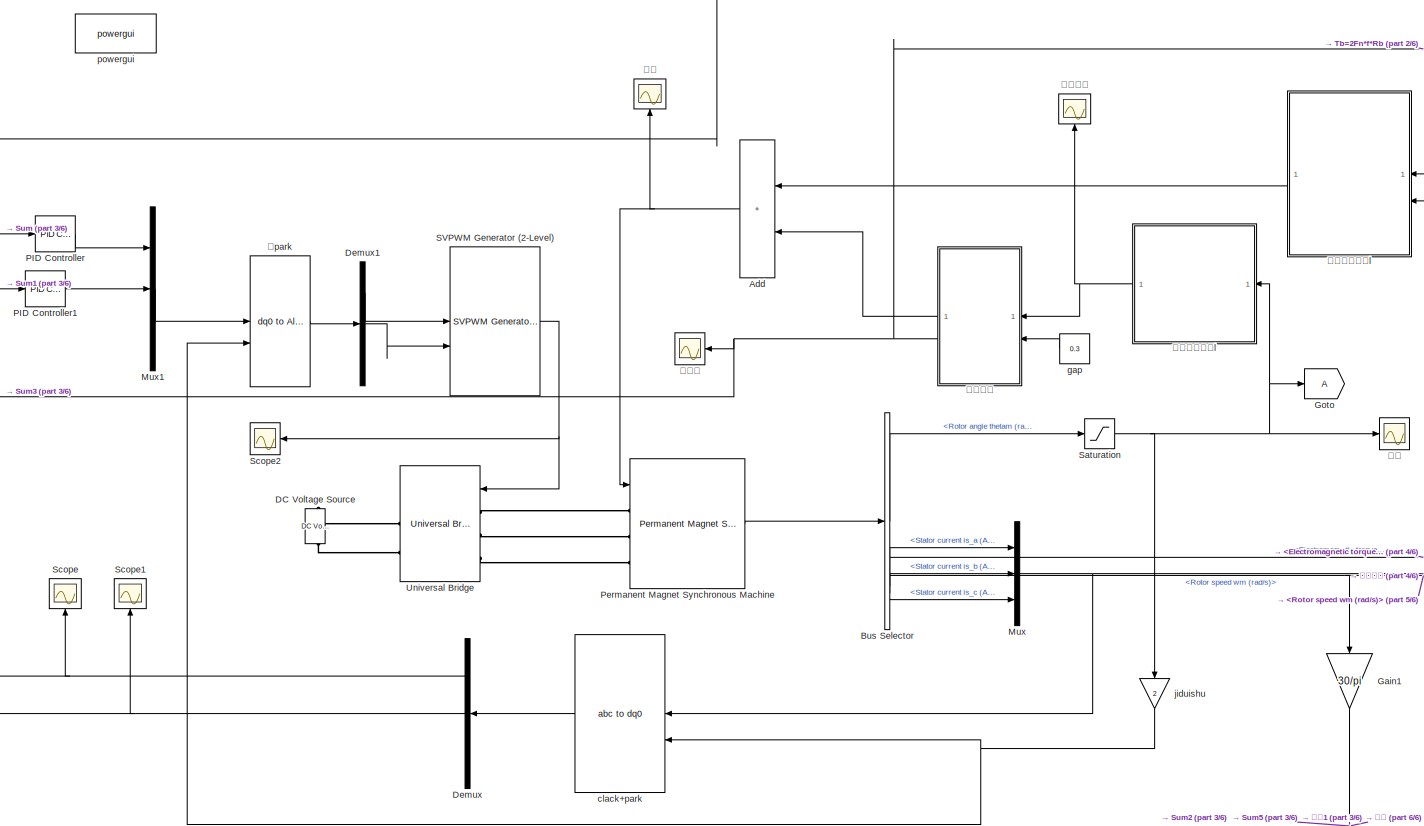
[diagram: root canvas - part 1/6, center side, full height]
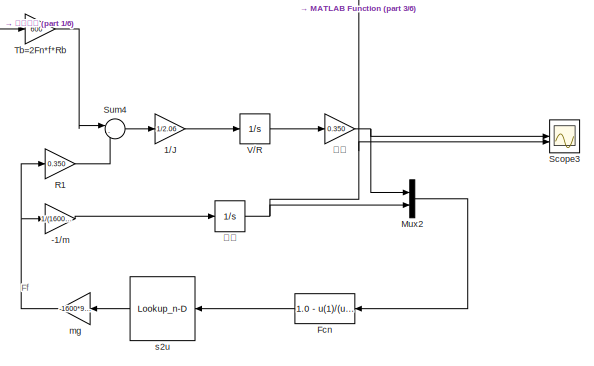
[diagram: root canvas - part 2/6, top right region]
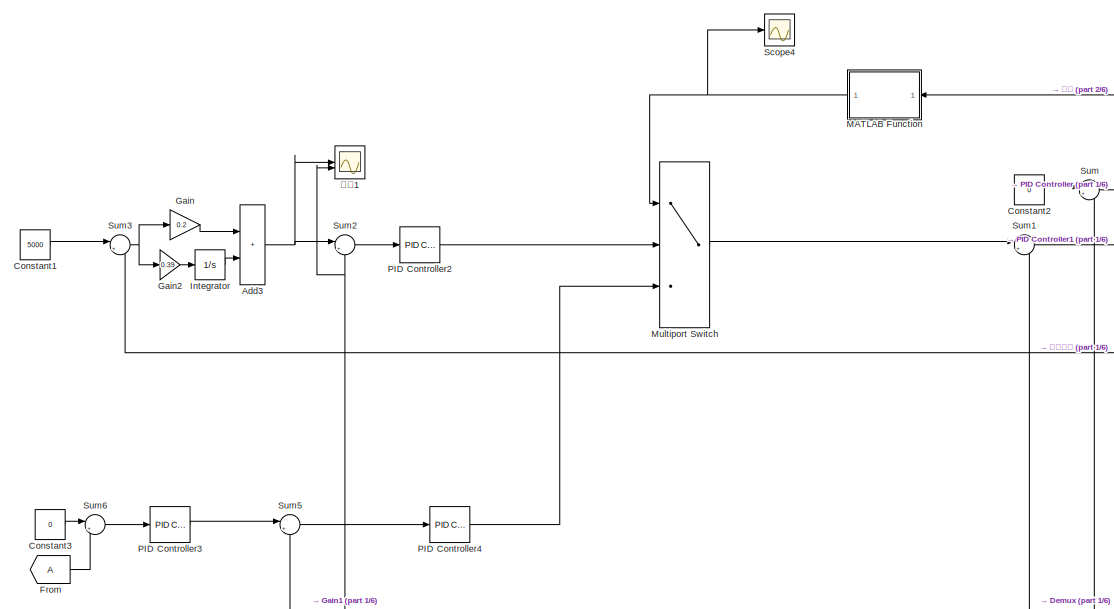
[diagram: root canvas - part 3/6, middle left region]
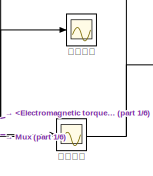
[diagram: root canvas - part 4/6, middle right region]
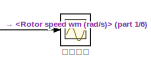
[diagram: root canvas - part 5/6, middle right region]
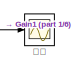
[diagram: root canvas - part 6/6, bottom right region]
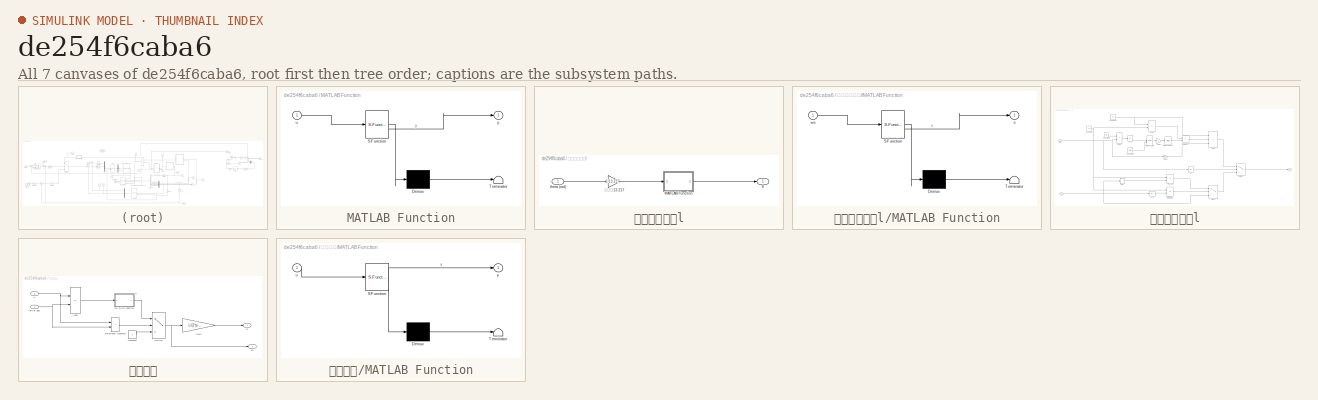
[diagram: thumbnail index - all 7 canvases of the model, root first then tree order]
MODEL slx_de254f6caba6
KIND model
CONFIG AbsTol = auto
CONFIG EnableMultiTasking = off
CONFIG FixedStep = 5e-5
CONFIG MaxStep = auto
CONFIG MinStep = auto
CONFIG RelTol = 1e-3
CONFIG SampleTimeConstraint = Unconstrained
CONFIG SolverName = FixedStepAuto
CONFIG StartTime = 0.0
CONFIG StopTime = 8
WORKSPACE source: mxarray member
WORKSPACE Bv = 0.001086
WORKSPACE L = 0.005
WORKSPACE Tc = 0.0192
WORKSPACE Ts = 0.0387
WORKSPACE Ws = 1
WORKSPACE deta = 1
WORKSPACE ng = 0.9
WORKSPACE ns = 0.9
BLOCK [Gain] -1//m
  Gain = 1/(1600*0.25)
BLOCK [Gain] 1//J
  Gain = 1/2.06
BLOCK [Sum] Add
  IconShape = rectangular
BLOCK [Sum] Add3
  IconShape = rectangular
BLOCK [BusSelector] Bus Selector
  OutputSignals = Rotor angle thetam (rad),Electromagnetic torque Te (N*m),Rotor speed wm (rad/s),Stator current is_a (A),Stator current is_b (A),Stator current is_c (A)
BLOCK [Constant] Constant1
  Value = 5000
BLOCK [Constant] Constant2
  Value = 0
BLOCK [Constant] Constant3
  Value = 0
  VectorParams1D = off
BLOCK [Reference] DC Voltage Source  REF=spsDCVoltageSourceLib/DC Voltage Source
  LibrarySourceBlock = sps_lib/Sources/DC Voltage Source
  NameLocation = right
  SourceBlock = spsDCVoltageSourceLib/DC Voltage Source
  SourceType = DC Voltage Source
BLOCK [Demux] Demux
  Outputs = 3
BLOCK [Demux] Demux1
  Outputs = 3
BLOCK [Fcn] Fcn
  Expr = 1.0 - u(1)/(u(2) + (u(2)==0)*eps)
  NameLocation = top
BLOCK [From] From
BLOCK [Gain] Gain
  Gain = 0.2
BLOCK [Gain] Gain1
  Gain = 30/pi
  NameLocation = left
BLOCK [Gain] Gain2
  Gain = 0.39
BLOCK [Goto] Goto
BLOCK [Integrator] Integrator
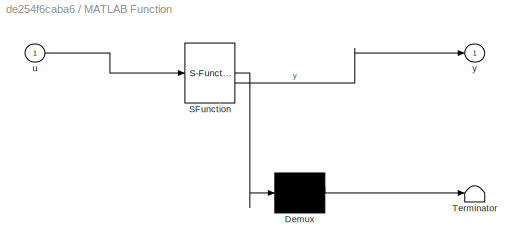
BLOCK [SubSystem] MATLAB Function
  ErrorFcn = Stateflow.Translate.translate
  LibrarySourceBlock = simulink/User-Defined\nFunctions/MATLAB Function
  NameLocation = top
  PermitHierarchicalResolution = ExplicitOnly
  SFBlockType = MATLAB Function
  TreatAsAtomicUnit = on
BLOCK [Demux] MATLAB Function/ Demux 
  Outputs = 1
BLOCK [S-Function] MATLAB Function/ SFunction 
  EnableBusSupport = on
  FunctionName = sf_sfun
  PortCounts = [1 2]
  SFcnIsStateOwnerBlock = off
  SFunctionDeploymentMode = off
  Tag = Stateflow S-Function 3
BLOCK [Terminator] MATLAB Function/ Terminator 
BLOCK [Inport] MATLAB Function/u
BLOCK [Outport] MATLAB Function/y
BLOCK [MultiPortSwitch] Multiport Switch
  DiagnosticForDefault = None
  InputSameDT = off
  Inputs = 2
  SaturateOnIntegerOverflow = off
BLOCK [Mux] Mux
  DisplayOption = bar
  Inputs = 3
BLOCK [Mux] Mux1
  DisplayOption = bar
  Inputs = 3
BLOCK [Mux] Mux2
  DisplayOption = bar
  Inputs = 2
BLOCK [Reference] PID Controller  REF=slpidlib/PID Controller
  SourceBlock = slpidlib/PID Controller
  SourceType = PID 1dof
BLOCK [Reference] PID Controller1  REF=slpidlib/PID Controller
  SourceBlock = slpidlib/PID Controller
  SourceType = PID 1dof
BLOCK [Reference] PID Controller2  REF=slpidlib/PID Controller
  SourceBlock = slpidlib/PID Controller
  SourceType = PID 1dof
BLOCK [Reference] PID Controller3  REF=slpidlib/PID Controller
  SourceBlock = slpidlib/PID Controller
  SourceType = PID 1dof
BLOCK [Reference] PID Controller4  REF=slpidlib/PID Controller
  SourceBlock = slpidlib/PID Controller
  SourceType = PID 1dof
BLOCK [Reference] Permanent Magnet Synchronous Machine  REF=spsPermanentMagnetSynchronousMachineLib/Permanent Magnet
Synchronous Machine
  LibrarySourceBlock = sps_lib/Electrical Machines/Permanent Magnet\nSynchronous Machine
  SourceBlock = spsPermanentMagnetSynchronousMachineLib/Permanent Magnet\nSynchronous Machine
  SourceType = Permanent Magnet Synchronous Machine
BLOCK [Gain] R1
  Gain = 0.350
BLOCK [Reference] SVPWM Generator (2-Level)  REF=spsSVPWMGenerator2LevelLib/SVPWM Generator
(2-Level)
  LibrarySourceBlock = sps_lib/Power Electronics/Power Electronics Control/SVPWM Generator\n(2-Level)
  SourceBlock = spsSVPWMGenerator2LevelLib/SVPWM Generator\n(2-Level)
  SourceType = SVPWM Generator (2-Level)
BLOCK [Saturate] Saturation
  LowerLimit = 0
  UpperLimit = 1000000
BLOCK [Scope] Scope
  Floating = off
  NameLocation = right
  NumInputPorts = 1
  ScopeSpecificationString = Simulink.scopes.TimeScopeBlockCfg('CurrentConfiguration', extmgr.ConfigurationSet(extmgr.Configuration('Core','General UI',true),extmgr.Configuration('Core','Source UI',true),extmgr.Configuration('Sources','WiredSimulink',true,'DataLoggingVariableName','ScopeData5'),extmgr.Configuration('Visuals','Time Domain',true,'SerializedDisplays',{struct('MinYLimReal','-19.37793','MaxYLimReal','29.91479','YL...<+1472ch>
BLOCK [Scope] Scope1
  Floating = off
  NameLocation = right
  NumInputPorts = 1
  ScopeSpecificationString = Simulink.scopes.TimeScopeBlockCfg('CurrentConfiguration', extmgr.ConfigurationSet(extmgr.Configuration('Core','General UI',true),extmgr.Configuration('Core','Source UI',true),extmgr.Configuration('Sources','WiredSimulink',true,'DataLoggingVariableName','ScopeData2'),extmgr.Configuration('Visuals','Time Domain',true,'SerializedDisplays',{struct('MinYLimReal','-15.96589','MaxYLimReal','13.93676','YL...<+1426ch>
BLOCK [Scope] Scope2
  Floating = off
  NameLocation = top
  NumInputPorts = 1
  ScopeSpecificationString = Simulink.scopes.TimeScopeBlockCfg('CurrentConfiguration', extmgr.ConfigurationSet(extmgr.Configuration('Core','General UI',true),extmgr.Configuration('Core','Source UI',true),extmgr.Configuration('Sources','WiredSimulink',true,'DataLoggingVariableName','ScopeData3'),extmgr.Configuration('Visuals','Time Domain',true,'SerializedDisplays',{struct('MinYLimReal','-0.125','MaxYLimReal','1.125','YLabelRe...<+1624ch>
BLOCK [Scope] Scope3
  Floating = off
  NumInputPorts = 2
  ScopeSpecificationString = Simulink.scopes.TimeScopeBlockCfg('CurrentConfiguration', extmgr.ConfigurationSet(extmgr.Configuration('Core','General UI',true),extmgr.Configuration('Core','Source UI',true),extmgr.Configuration('Sources','WiredSimulink',true,'DataLoggingVariableName','ScopeData1'),extmgr.Configuration('Visuals','Time Domain',true,'SerializedDisplays',{struct('MinYLimReal','-5.00000','MaxYLimReal','45.00000','YLa...<+1399ch>
BLOCK [Scope] Scope4
  Floating = off
  NumInputPorts = 1
  ScopeSpecificationString = Simulink.scopes.TimeScopeBlockCfg('CurrentConfiguration', extmgr.ConfigurationSet(extmgr.Configuration('Core','General UI',true),extmgr.Configuration('Core','Source UI',true),extmgr.Configuration('Sources','WiredSimulink',true,'DataLoggingVariableName','ScopeData1'),extmgr.Configuration('Visuals','Time Domain',true,'SerializedDisplays',{struct('MinYLimReal','0.875','MaxYLimReal','2.125','YLabelRea...<+1385ch>
BLOCK [Sum] Sum
  Inputs = |+-
BLOCK [Sum] Sum1
  Inputs = |+-
BLOCK [Sum] Sum2
  Inputs = |+-
BLOCK [Sum] Sum3
  Inputs = |+-
BLOCK [Sum] Sum4
  Inputs = |-+
BLOCK [Sum] Sum5
  Inputs = |+-
BLOCK [Sum] Sum6
  Inputs = |+-
BLOCK [Gain] Tb=2Fn*f*Rb
  Gain = 600
BLOCK [Reference] Universal Bridge  REF=spsUniversalBridgeLib/Universal Bridge
  LibrarySourceBlock = sps_lib/Power Electronics/Universal Bridge
  SourceBlock = spsUniversalBridgeLib/Universal Bridge
  SourceType = Universal Bridge
BLOCK [Integrator] V//R
  InitialCondition = 40/0.350
  LimitOutput = on
  LowerSaturationLimit = 0
  UpperSaturationLimit = 1000
BLOCK [Reference] clack+park  REF=spsabctodq0Lib/abc to dq0
  LibrarySourceBlock = sps_lib/Control/abc to dq0
  SourceBlock = spsabctodq0Lib/abc to dq0
  SourceType = abc to dq0 Transformation
BLOCK [Constant] gap
  Value = 0.3
BLOCK [Gain] jiduishu
  Gain = 2
  NameLocation = left
BLOCK [Gain] mg
  Gain = -1600*9.8/4
BLOCK [Reference] powergui  REF=sps_lib/powergui
  Priority = 1
  SourceBlock = sps_lib/powergui
  SourceType = PSB option menu block
BLOCK [Lookup_n-D] s2u
  BreakpointsForDimension1 = [0;0.05;0.1;0.15;0.2;0.25;0.3;0.35;0.4;0.45;0.5;0.55;0.6;0.65;0.7;0.75;0.8;0.85;0.9;0.95;1]
  InputPortMap = u0
  InternalRulePriority = Speed
  NumberOfTableDimensions = 1
  RndMeth = Simplest
  Table = [0;0.4;0.8;0.97;1;0.98;0.96;0.94;0.92;0.9;0.88;0.855;0.83;0.81;0.79;0.77;0.75;0.73;0.72;0.71;0.7]
BLOCK [SubSystem] 传动机构模型l
BLOCK [Inport] 传动机构模型l/ theta (rad)
BLOCK [SubSystem] 传动机构模型l/MATLAB Function
  ErrorFcn = Stateflow.Translate.translate
  LibrarySourceBlock = simulink/User-Defined\nFunctions/MATLAB Function
  PermitHierarchicalResolution = ExplicitOnly
  SFBlockType = MATLAB Function
  TreatAsAtomicUnit = on
BLOCK [Demux] 传动机构模型l/MATLAB Function/ Demux 
  Outputs = 1
BLOCK [S-Function] 传动机构模型l/MATLAB Function/ SFunction 
  EnableBusSupport = on
  FunctionName = sf_sfun
  PortCounts = [1 2]
  SFcnIsStateOwnerBlock = off
  SFunctionDeploymentMode = off
  Tag = Stateflow S-Function 1
BLOCK [Terminator] 传动机构模型l/MATLAB Function/ Terminator 
BLOCK [Outport] 传动机构模型l/MATLAB Function/s
BLOCK [Inport] 传动机构模型l/MATLAB Function/ws
BLOCK [Outport] 传动机构模型l/S
  VectorParamsAs1DForOutWhenUnconnected = off
BLOCK [Gain] 传动机构模型l/传动比13.217
  Gain = 1/13.217
BLOCK [Reference] 反park  REF=spsdq0toAlphaBetaZeroLib/dq0 to
Alpha-Beta-Zero
  LibrarySourceBlock = sps_lib/Control/dq0 to\nAlpha-Beta-Zero
  SourceBlock = spsdq0toAlphaBetaZeroLib/dq0 to\nAlpha-Beta-Zero
  SourceType = dq0 to Alpha-Beta-Zero Transformation
BLOCK [Scope] 夹紧力
  Floating = off
  NumInputPorts = 1
  ScopeSpecificationString = Simulink.scopes.TimeScopeBlockCfg('CurrentConfiguration', extmgr.ConfigurationSet(extmgr.Configuration('Core','General UI',true),extmgr.Configuration('Core','Source UI',true),extmgr.Configuration('Sources','WiredSimulink',true),extmgr.Configuration('Visuals','Time Domain',true,'SerializedDisplays',{struct('MinYLimReal','-890.18744','MaxYLimReal','8011.68692','YLabelReal','','MinYLimMag',' 0.00000'...<+1444ch>
BLOCK [Scope] 定子电流
  Floating = off
  NumInputPorts = 1
  ScopeSpecificationString = Simulink.scopes.TimeScopeBlockCfg('CurrentConfiguration', extmgr.ConfigurationSet(extmgr.Configuration('Core','General UI',true),extmgr.Configuration('Core','Source UI',true),extmgr.Configuration('Sources','WiredSimulink',true,'DataLoggingVariableName','ScopeData1'),extmgr.Configuration('Visuals','Time Domain',true,'SerializedDisplays',{struct('MinYLimReal','-76.07517','MaxYLimReal','76.02422','YL...<+1544ch>
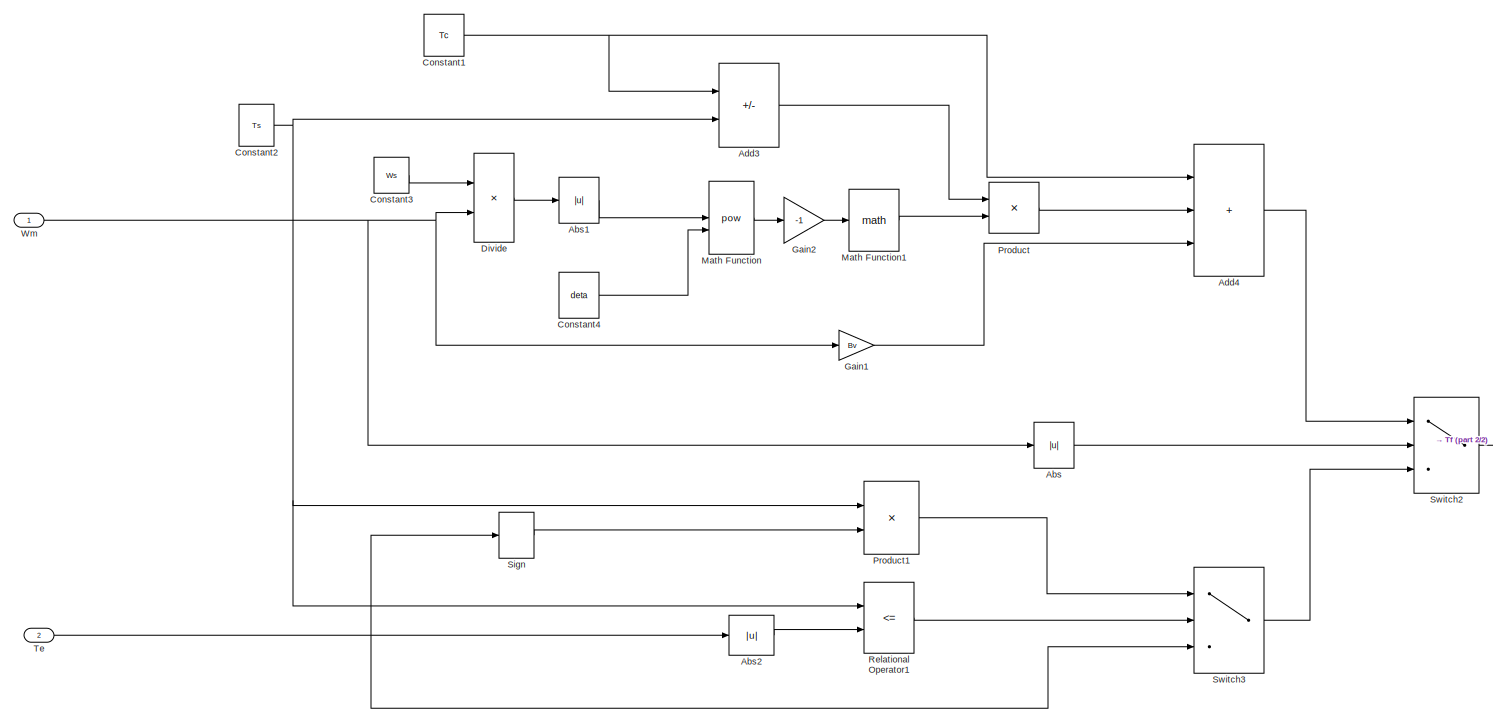
[diagram: 电机摩擦模型l - part 1/2, most of the canvas]
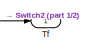
[diagram: 电机摩擦模型l - part 2/2, middle right region]
BLOCK [SubSystem] 电机摩擦模型l
BLOCK [Abs] 电机摩擦模型l/Abs
  SaturateOnIntegerOverflow = off
BLOCK [Abs] 电机摩擦模型l/Abs1
  SaturateOnIntegerOverflow = off
BLOCK [Abs] 电机摩擦模型l/Abs2
  SaturateOnIntegerOverflow = off
BLOCK [Sum] 电机摩擦模型l/Add3
  IconShape = rectangular
  Inputs = -+
BLOCK [Sum] 电机摩擦模型l/Add4
  IconShape = rectangular
  Inputs = +++
BLOCK [Constant] 电机摩擦模型l/Constant1
  Value = Tc
BLOCK [Constant] 电机摩擦模型l/Constant2
  Value = Ts
BLOCK [Constant] 电机摩擦模型l/Constant3
  Value = Ws
BLOCK [Constant] 电机摩擦模型l/Constant4
  Value = deta
BLOCK [Product] 电机摩擦模型l/Divide
  Inputs = /*
BLOCK [Gain] 电机摩擦模型l/Gain1
  Gain = Bv
BLOCK [Gain] 电机摩擦模型l/Gain2
  Gain = -1
BLOCK [Math] 电机摩擦模型l/Math Function
  Operator = pow
  SignedPower = on
BLOCK [Math] 电机摩擦模型l/Math Function1
  SignedPower = on
BLOCK [Product] 电机摩擦模型l/Product
BLOCK [Product] 电机摩擦模型l/Product1
BLOCK [RelationalOperator] 电机摩擦模型l/Relational Operator1
  InputSameDT = off
  Operator = <=
  OutDataTypeStr = boolean
  RndMeth = Simplest
BLOCK [Signum] 电机摩擦模型l/Sign
BLOCK [Switch] 电机摩擦模型l/Switch2
  Criteria = u2 > Threshold
  InputSameDT = off
  SaturateOnIntegerOverflow = off
BLOCK [Switch] 电机摩擦模型l/Switch3
  Criteria = u2 > Threshold
  InputSameDT = off
  SaturateOnIntegerOverflow = off
BLOCK [Inport] 电机摩擦模型l/Te
  Port = 2
BLOCK [Outport] 电机摩擦模型l/Tf
  VectorParamsAs1DForOutWhenUnconnected = off
BLOCK [Inport] 电机摩擦模型l/Wm
BLOCK [Scope] 电磁转矩
  Floating = off
  NumInputPorts = 1
  ScopeSpecificationString = Simulink.scopes.TimeScopeBlockCfg('CurrentConfiguration', extmgr.ConfigurationSet(extmgr.Configuration('Core','General UI',true),extmgr.Configuration('Core','Source UI',true),extmgr.Configuration('Sources','WiredSimulink',true,'DataLoggingVariableName','ScopeData3'),extmgr.Configuration('Visuals','Time Domain',true,'SerializedDisplays',{struct('MinYLimReal','-0.35646','MaxYLimReal','3.2081','YLabe...<+1486ch>
BLOCK [Scope] 螺母位移
  Floating = off
  NameLocation = right
  NumInputPorts = 1
  ScopeSpecificationString = Simulink.scopes.TimeScopeBlockCfg('CurrentConfiguration', extmgr.ConfigurationSet(extmgr.Configuration('Core','General UI',true),extmgr.Configuration('Core','Source UI',true),extmgr.Configuration('Sources','WiredSimulink',true,'DataLoggingVariableName','ScopeData4'),extmgr.Configuration('Visuals','Time Domain',true,'SerializedDisplays',{struct('MinYLimReal','-0.11705','MaxYLimReal','1.05342','YLab...<+1750ch>
BLOCK [Scope] 负载
  Floating = off
  NameLocation = right
  NumInputPorts = 1
  ScopeSpecificationString = Simulink.scopes.TimeScopeBlockCfg('CurrentConfiguration', extmgr.ConfigurationSet(extmgr.Configuration('Core','General UI',true),extmgr.Configuration('Core','Source UI',true),extmgr.Configuration('Sources','WiredSimulink',true,'DataLoggingVariableName','ScopeData1'),extmgr.Configuration('Visuals','Time Domain',true,'SerializedDisplays',{struct('MinYLimReal','-0.31534','MaxYLimReal','2.83806','YLab...<+1462ch>
BLOCK [SubSystem] 负载模型
BLOCK [Sum] 负载模型/Add1
  IconShape = rectangular
  Inputs = +-
BLOCK [Constant] 负载模型/Constant
  Value = 0
BLOCK [Outport] 负载模型/Fn
  Port = 2
BLOCK [Gain] 负载模型/Gain
  Gain = L/(2*pi*13.217)
BLOCK [SubSystem] 负载模型/MATLAB Function
  ErrorFcn = Stateflow.Translate.translate
  PermitHierarchicalResolution = ExplicitOnly
  SFBlockType = MATLAB Function
  TreatAsAtomicUnit = on
BLOCK [Demux] 负载模型/MATLAB Function/ Demux 
  Outputs = 1
BLOCK [S-Function] 负载模型/MATLAB Function/ SFunction 
  EnableBusSupport = on
  FunctionName = sf_sfun
  PortCounts = [1 2]
  SFcnIsStateOwnerBlock = off
  SFunctionDeploymentMode = off
  Tag = Stateflow S-Function 2
BLOCK [Terminator] 负载模型/MATLAB Function/ Terminator 
BLOCK [Inport] 负载模型/MATLAB Function/u
BLOCK [Outport] 负载模型/MATLAB Function/y
  VectorParamsAs1DForOutWhenUnconnected = off
BLOCK [RelationalOperator] 负载模型/Relational Operator
  InputSameDT = off
  Operator = >
  OutDataTypeStr = boolean
  RndMeth = Simplest
BLOCK [Inport] 负载模型/S
BLOCK [Switch] 负载模型/Switch
  Criteria = u2 > Threshold
  InputSameDT = off
  SaturateOnIntegerOverflow = off
BLOCK [Outport] 负载模型/TL
  VectorParamsAs1DForOutWhenUnconnected = off
BLOCK [Inport] 负载模型/initial gap
  Port = 2
BLOCK [Integrator] 车速
  InitialCondition = 40
  LimitOutput = on
  LowerSaturationLimit = 0
  ShowSaturationPort = on
  UpperSaturationLimit = 100
BLOCK [Scope] 转角
  Floating = off
  NumInputPorts = 1
  ScopeSpecificationString = Simulink.scopes.TimeScopeBlockCfg('CurrentConfiguration', extmgr.ConfigurationSet(extmgr.Configuration('Core','General UI',true),extmgr.Configuration('Core','Source UI',true),extmgr.Configuration('Sources','WiredSimulink',true,'DataLoggingVariableName','ScopeData2'),extmgr.Configuration('Visuals','Time Domain',true,'SerializedDisplays',{struct('MinYLimReal','-46.61079','MaxYLimReal','419.49708','Y...<+1495ch>
BLOCK [Scope] 转角1
  Floating = off
  NumInputPorts = 2
  ScopeSpecificationString = Simulink.scopes.TimeScopeBlockCfg('CurrentConfiguration', extmgr.ConfigurationSet(extmgr.Configuration('Core','General UI',true),extmgr.Configuration('Core','Source UI',true),extmgr.Configuration('Sources','WiredSimulink',true,'DataLoggingVariableName','ScopeData1'),extmgr.Configuration('Visuals','Time Domain',true,'SerializedDisplays',{struct('MinYLimReal','-950.00000','MaxYLimReal','18550.00000'...<+2119ch>
BLOCK [Scope] 转速
  Floating = off
  NumInputPorts = 1
  ScopeSpecificationString = Simulink.scopes.TimeScopeBlockCfg('CurrentConfiguration', extmgr.ConfigurationSet(extmgr.Configuration('Core','General UI',true),extmgr.Configuration('Core','Source UI',true),extmgr.Configuration('Sources','WiredSimulink',true,'DataLoggingVariableName','ScopeData1'),extmgr.Configuration('Visuals','Time Domain',true,'SerializedDisplays',{struct('MinYLimReal','-311.88468','MaxYLimReal','1317.9913','...<+1478ch>
BLOCK [Scope] 转速弧度
  Floating = off
  NumInputPorts = 1
  ScopeSpecificationString = Simulink.scopes.TimeScopeBlockCfg('CurrentConfiguration', extmgr.ConfigurationSet(extmgr.Configuration('Core','General UI',true),extmgr.Configuration('Core','Source UI',true),extmgr.Configuration('Sources','WiredSimulink',true,'DataLoggingVariableName','ScopeData1'),extmgr.Configuration('Visuals','Time Domain',true,'SerializedDisplays',{struct('MinYLimReal','-16.36928','MaxYLimReal','136.20959','Y...<+1493ch>
BLOCK [Gain] 轮速
  Gain = 0.350
ANNOTATION (root): Ff
ANNOTATION 负载模型: Fn
LINE -1//m:1 -> 车速:1
LINE 1//J:1 -> V//R:1
NET Add3:1 -> Sum2:1, 转角1:1
NET Add:1 -> Permanent Magnet Synchronous Machine:1, 负载:1
LINE Bus Selector:1 -> Saturation:1
NET Bus Selector:2 -> 电机摩擦模型l:2, 电磁转矩:1
NET Bus Selector:3 -> Gain1:1, 电机摩擦模型l:1, 转速弧度:1
LINE Bus Selector:4 -> Mux:1
LINE Bus Selector:5 -> Mux:2
LINE Bus Selector:6 -> Mux:3
LINE Constant1:1 -> Sum3:1
LINE Constant2:1 -> Sum:1
LINE Constant3:1 -> Sum6:1
LINE Demux1:1 -> SVPWM Generator (2-Level):1
LINE Demux1:2 -> SVPWM Generator (2-Level):2
NET Demux:1 -> Scope:1, Sum:2
NET Demux:2 -> Scope1:1, Sum1:2
LINE Fcn:1 -> s2u:1
LINE From:1 -> Sum6:2
NET Gain1:1 -> Sum2:2, Sum5:2, 转角1:2, 转速:1
LINE Gain2:1 -> Integrator:1
LINE Gain:1 -> Add3:1
LINE Integrator:1 -> Add3:2
NET MATLAB Function:1 -> Multiport Switch:1, Scope4:1
LINE Multiport Switch:1 -> Sum1:1
LINE Mux1:1 -> 反park:1
LINE Mux2:1 -> Fcn:1
NET Mux:1 -> clack+park:1, 定子电流:1
LINE PID Controller1:1 -> Mux1:2
LINE PID Controller2:1 -> Multiport Switch:2
LINE PID Controller3:1 -> Sum5:1
LINE PID Controller4:1 -> Multiport Switch:3
LINE PID Controller:1 -> Mux1:1
LINE Permanent Magnet Synchronous Machine:1 -> Bus Selector:1
LINE R1:1 -> Sum4:2
NET SVPWM Generator (2-Level):1 -> Scope2:1, Universal Bridge:1
NET Saturation:1 -> Goto:1, jiduishu:1, 传动机构模型l:1, 转角:1
LINE Sum1:1 -> PID Controller1:1
LINE Sum2:1 -> PID Controller2:1
NET Sum3:1 -> Gain2:1, Gain:1
LINE Sum4:1 -> 1//J:1
LINE Sum5:1 -> PID Controller4:1
LINE Sum6:1 -> PID Controller3:1
LINE Sum:1 -> PID Controller:1
LINE Tb=2Fn*f*Rb:1 -> Sum4:1
LINE V//R:1 -> 轮速:1
LINE clack+park:1 -> Demux:1
LINE gap:1 -> 负载模型:2
NET jiduishu:1 -> clack+park:2, 反park:2
NET mg:1 -> -1//m:1, R1:1
LINE s2u:1 -> mg:1
LINE 传动机构模型l/ theta (rad):1 -> 传动机构模型l/传动比13.217:1
LINE 传动机构模型l/MATLAB Function:1 -> 传动机构模型l/S:1
LINE 传动机构模型l/传动比13.217:1 -> 传动机构模型l/MATLAB Function:1
NET 传动机构模型l:1 -> 螺母位移:1, 负载模型:1
LINE 反park:1 -> Demux1:1
LINE 电机摩擦模型l/Abs1:1 -> 电机摩擦模型l/Math Function:1
LINE 电机摩擦模型l/Abs2:1 -> 电机摩擦模型l/Relational Operator1:2
LINE 电机摩擦模型l/Abs:1 -> 电机摩擦模型l/Switch2:2
LINE 电机摩擦模型l/Add3:1 -> 电机摩擦模型l/Product:1
LINE 电机摩擦模型l/Add4:1 -> 电机摩擦模型l/Switch2:1
NET 电机摩擦模型l/Constant1:1 -> 电机摩擦模型l/Add3:1, 电机摩擦模型l/Add4:1
NET 电机摩擦模型l/Constant2:1 -> 电机摩擦模型l/Add3:2, 电机摩擦模型l/Product1:1, 电机摩擦模型l/Relational Operator1:1
LINE 电机摩擦模型l/Constant3:1 -> 电机摩擦模型l/Divide:1
LINE 电机摩擦模型l/Constant4:1 -> 电机摩擦模型l/Math Function:2
LINE 电机摩擦模型l/Divide:1 -> 电机摩擦模型l/Abs1:1
LINE 电机摩擦模型l/Gain1:1 -> 电机摩擦模型l/Add4:3
LINE 电机摩擦模型l/Gain2:1 -> 电机摩擦模型l/Math Function1:1
LINE 电机摩擦模型l/Math Function1:1 -> 电机摩擦模型l/Product:2
LINE 电机摩擦模型l/Math Function:1 -> 电机摩擦模型l/Gain2:1
LINE 电机摩擦模型l/Product1:1 -> 电机摩擦模型l/Switch3:1
LINE 电机摩擦模型l/Product:1 -> 电机摩擦模型l/Add4:2
LINE 电机摩擦模型l/Relational Operator1:1 -> 电机摩擦模型l/Switch3:2
LINE 电机摩擦模型l/Sign:1 -> 电机摩擦模型l/Product1:2
LINE 电机摩擦模型l/Switch2:1 -> 电机摩擦模型l/Tf:1
LINE 电机摩擦模型l/Switch3:1 -> 电机摩擦模型l/Switch2:3
NET 电机摩擦模型l/Te:1 -> 电机摩擦模型l/Abs2:1, 电机摩擦模型l/Sign:1, 电机摩擦模型l/Switch3:3
NET 电机摩擦模型l/Wm:1 -> 电机摩擦模型l/Abs:1, 电机摩擦模型l/Divide:2, 电机摩擦模型l/Gain1:1
LINE 电机摩擦模型l:1 -> Add:1
LINE 负载模型/Add1:1 -> 负载模型/MATLAB Function:1
LINE 负载模型/Constant:1 -> 负载模型/Switch:3
LINE 负载模型/Gain:1 -> 负载模型/TL:1
LINE 负载模型/MATLAB Function:1 -> 负载模型/Switch:1
LINE 负载模型/Relational Operator:1 -> 负载模型/Switch:2
NET 负载模型/S:1 -> 负载模型/Add1:1, 负载模型/Relational Operator:1
NET 负载模型/Switch:1 -> 负载模型/Fn:1, 负载模型/Gain:1
NET 负载模型/initial gap:1 -> 负载模型/Add1:2, 负载模型/Relational Operator:2
LINE 负载模型:1 -> Add:2
NET 负载模型:2 -> Sum3:2, Tb=2Fn*f*Rb:1, 夹紧力:1
NET 车速:1 -> MATLAB Function:1, Mux2:2, Scope3:2
NET 轮速:1 -> Mux2:1, Scope3:1
PLINE DC Voltage Source:LConn1 -- Universal Bridge:RConn2
PLINE DC Voltage Source:RConn1 -- Universal Bridge:RConn1
PLINE Permanent Magnet Synchronous Machine:LConn1 -- Universal Bridge:LConn1
PLINE Permanent Magnet Synchronous Machine:LConn2 -- Universal Bridge:LConn2
PLINE Permanent Magnet Synchronous Machine:LConn3 -- Universal Bridge:LConn3
note: NET lines group one-source signal fan-out (src -> all destinations, sorted); 1:1 wires keep LINE
CHART 负载模型/MATLAB Function states=1 transitions=1
  STATE_LABEL 'eML_blk_kernel()'
  STATE_LABEL 'SCRIPT:\nfunction y = fcn(u)\nif u>0.112\n   y=-1805*u^3+27290*u^2-6036*u+376.2\nelse\n   y=356.767*u\nend'
CHART MATLAB Function states=1 transitions=1
  STATE_LABEL 'eML_blk_kernel()'
  STATE_LABEL 'SCRIPT:\nfunction y = fcn(u)\n\nif u > 0\n    y = 1;\nelse\n    y = 2;\nend\n'
CHART 传动机构模型l/MATLAB Function states=1 transitions=1
  STATE_LABEL 'eML_blk_kernel()'
  STATE_LABEL 'SCRIPT:\nfunction s = fcn(ws)\n\ns = ((3.55+1.8)*(7.25+3.55)-1.8*7.25)*1.8*ws/((3.55+1.8)*(7.25+3.55)*2*pi);\nend'
CHART  states=0 transitions=0
CHART  states=0 transitions=0
CHART  states=0 transitions=0
